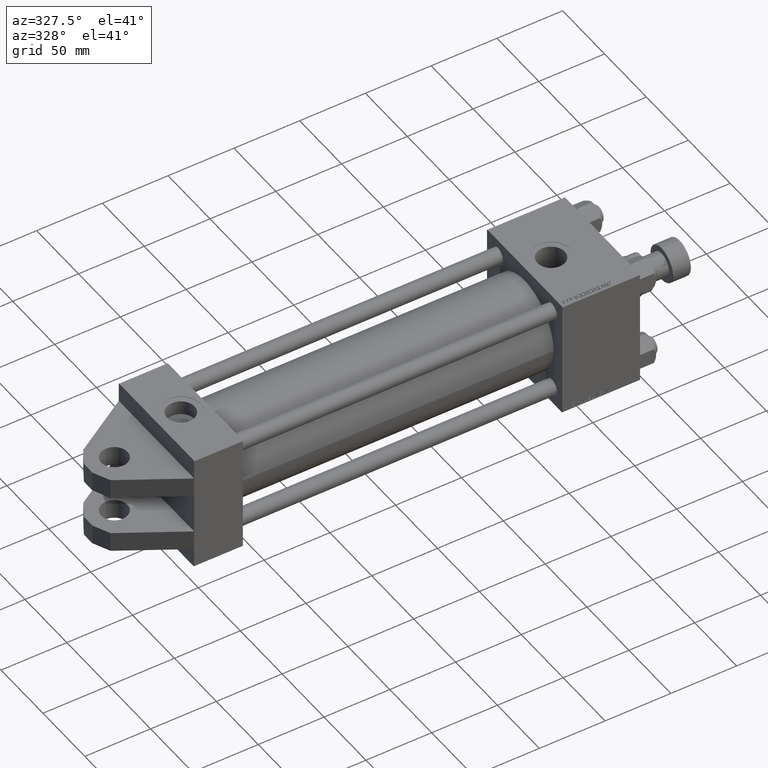
[diagram: clean part render]
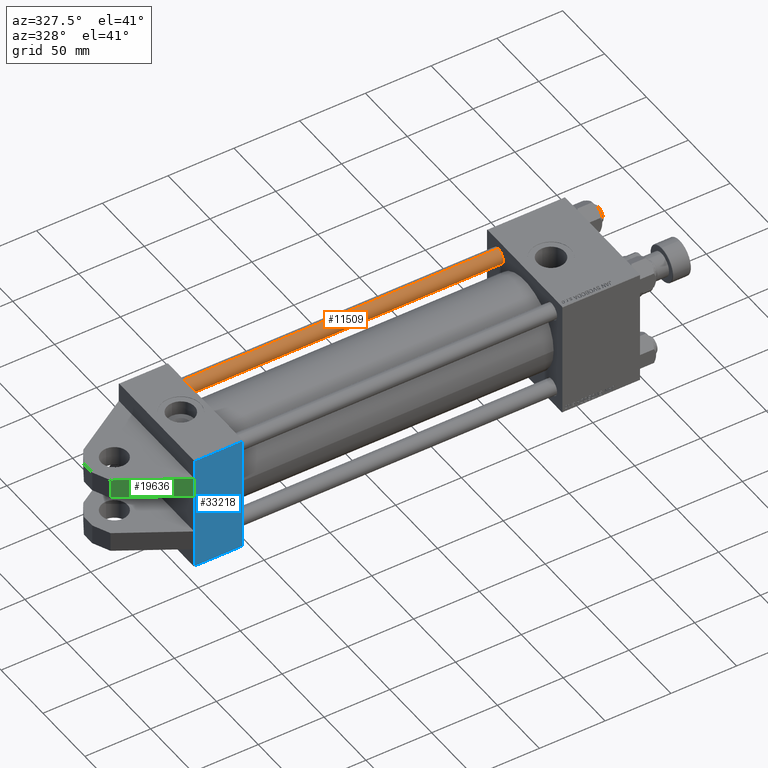
[diagram: same view with three faces highlighted in distinct colors, each labeled with its STEP entity id]
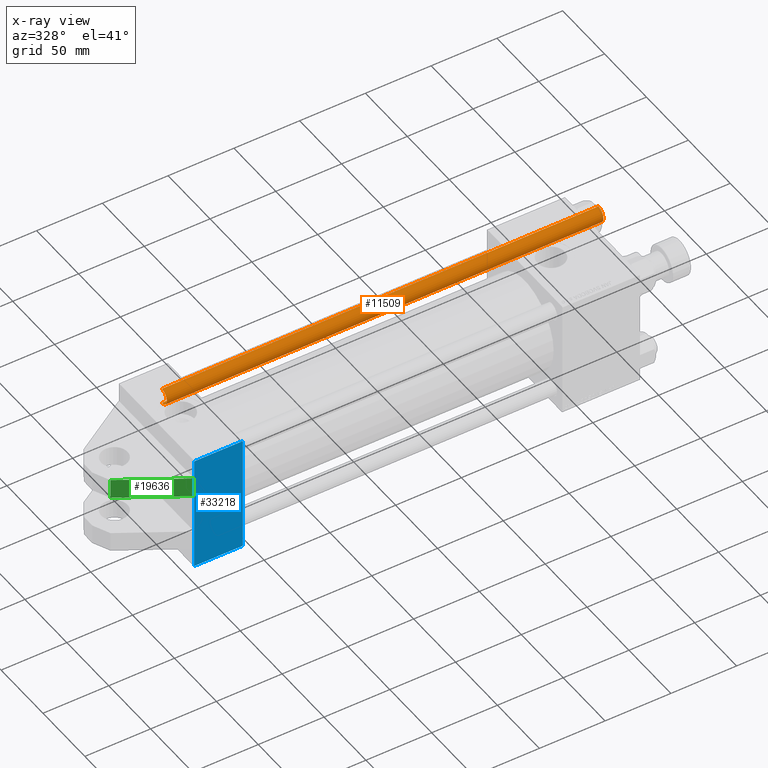
[diagram: x-ray of the same camera — body ghosted, the three highlighted faces saturated]
A machine part, auxiliary view with three faces highlighted in distinct colors.
The next image is the same camera in x-ray (body ghosted, the three faces saturated) — at least one of them is partly hidden behind the body in this view.
Their STEP definitions:

[orange] entity #11509 — the highlighted cylindrical surface (edge-blend (fillet) strip) has radius 6 mm, axis along (-1, 0, -0).
#3072 = ORIENTED_EDGE ( 'NONE', *, *, #42114, .T. ) ;
#4064 = VERTEX_POINT ( 'NONE', #45798 ) ;
#6759 = VERTEX_POINT ( 'NONE', #22047 ) ;
#6797 = DIRECTION ( 'NONE',  ( -0.000000000000000000, -0.000000000000000000, -1.000000000000000000 ) ) ;
#6805 = EDGE_LOOP ( 'NONE', ( #28702, #43788, #37924, #3072 ) ) ;
#9326 = CARTESIAN_POINT ( 'NONE',  ( 6.000000000000000888, 7.347880794884120722E-16, 332.5000000000001137 ) ) ;
#11301 = DIRECTION ( 'NONE',  ( -0.000000000000000000, -0.000000000000000000, 1.000000000000000000 ) ) ;
#11509 = ADVANCED_FACE ( 'NONE', ( #17408 ), #45187, .T. ) ;
#13043 = CARTESIAN_POINT ( 'NONE',  ( -6.000000000000000888, 0.000000000000000000, 333.0000000000000000 ) ) ;
#14238 = EDGE_CURVE ( 'NONE', #34865, #22035, #32903, .T. ) ;
#15283 = CARTESIAN_POINT ( 'NONE',  ( 0.000000000000000000, 0.000000000000000000, 0.5000000000000004441 ) ) ;
#17408 = FACE_OUTER_BOUND ( 'NONE', #6805, .T. ) ;
#20276 = VECTOR ( 'NONE', #6797, 1000.000000000000000 ) ;
#22035 = VERTEX_POINT ( 'NONE', #50832 ) ;
#22047 = CARTESIAN_POINT ( 'NONE',  ( 6.000000000000000888, 7.347880794884120722E-16, 0.5000000000000004441 ) ) ;
#27170 = DIRECTION ( 'NONE',  ( 1.000000000000000000, 0.000000000000000000, 0.000000000000000000 ) ) ;
#28702 = ORIENTED_EDGE ( 'NONE', *, *, #39894, .F. ) ;
#29310 = DIRECTION ( 'NONE',  ( -0.000000000000000000, -0.000000000000000000, -1.000000000000000000 ) ) ;
#32742 = CARTESIAN_POINT ( 'NONE',  ( 0.000000000000000000, 0.000000000000000000, 333.0000000000000000 ) ) ;
#32903 = CIRCLE ( 'NONE', #48126, 6.000000000000000888 ) ;
#33577 = LINE ( 'NONE', #37550, #20276 ) ;
#34781 = EDGE_CURVE ( 'NONE', #22035, #4064, #44511, .T. ) ;
#34865 = VERTEX_POINT ( 'NONE', #9326 ) ;
#37550 = CARTESIAN_POINT ( 'NONE',  ( 6.000000000000000888, 7.347880794884120722E-16, 333.0000000000000000 ) ) ;
#37924 = ORIENTED_EDGE ( 'NONE', *, *, #34781, .T. ) ;
#38905 = DIRECTION ( 'NONE',  ( 0.000000000000000000, 0.000000000000000000, -1.000000000000000000 ) ) ;
#39894 = EDGE_CURVE ( 'NONE', #34865, #6759, #33577, .T. ) ;
#40539 = DIRECTION ( 'NONE',  ( -0.000000000000000000, -0.000000000000000000, -1.000000000000000000 ) ) ;
#42114 = EDGE_CURVE ( 'NONE', #4064, #6759, #49046, .T. ) ;
#42358 = CARTESIAN_POINT ( 'NONE',  ( 0.000000000000000000, 0.000000000000000000, 332.5000000000001137 ) ) ;
#43788 = ORIENTED_EDGE ( 'NONE', *, *, #14238, .T. ) ;
#44511 = LINE ( 'NONE', #13043, #50590 ) ;
#44702 = AXIS2_PLACEMENT_3D ( 'NONE', #32742, #29310, #48894 ) ;
#45187 = CYLINDRICAL_SURFACE ( 'NONE', #44702, 6.000000000000000888 ) ;
#45798 = CARTESIAN_POINT ( 'NONE',  ( -6.000000000000000888, 0.000000000000000000, 0.5000000000000004441 ) ) ;
#48126 = AXIS2_PLACEMENT_3D ( 'NONE', #42358, #38905, #51070 ) ;
#48192 = AXIS2_PLACEMENT_3D ( 'NONE', #15283, #11301, #27170 ) ;
#48894 = DIRECTION ( 'NONE',  ( -1.000000000000000000, 0.000000000000000000, 0.000000000000000000 ) ) ;
#49046 = CIRCLE ( 'NONE', #48192, 6.000000000000000888 ) ;
#50590 = VECTOR ( 'NONE', #40539, 1000.000000000000000 ) ;
#50832 = CARTESIAN_POINT ( 'NONE',  ( -6.000000000000000888, 0.000000000000000000, 332.5000000000001137 ) ) ;
#51070 = DIRECTION ( 'NONE',  ( 1.000000000000000000, 0.000000000000000000, 0.000000000000000000 ) ) ;

[blue] entity #33218 — the highlighted planar face has unit normal (0, -1, -0).
#729 = AXIS2_PLACEMENT_3D ( 'NONE', #32029, #44481, #3771 ) ;
#1049 = VECTOR ( 'NONE', #2582, 1000.000000000000000 ) ;
#1268 = CARTESIAN_POINT ( 'NONE',  ( 0.000000000000000000, -30.00000000000000000, -45.00000000000000000 ) ) ;
#1771 = VECTOR ( 'NONE', #6915, 1000.000000000000000 ) ;
#1967 = ORIENTED_EDGE ( 'NONE', *, *, #42405, .F. ) ;
#2278 = LINE ( 'NONE', #2541, #33552 ) ;
#2439 = VECTOR ( 'NONE', #39937, 1000.000000000000000 ) ;
#2541 = CARTESIAN_POINT ( 'NONE',  ( 0.000000000000000000, 44.99999999999998579, -44.99999999999998579 ) ) ;
#2582 = DIRECTION ( 'NONE',  ( 1.000000000000000000, 0.000000000000000000, 0.000000000000000000 ) ) ;
#3575 = ORIENTED_EDGE ( 'NONE', *, *, #48679, .T. ) ;
#3771 = DIRECTION ( 'NONE',  ( 0.000000000000000000, 1.000000000000000000, 1.541976423090495880E-16 ) ) ;
#4960 = VERTEX_POINT ( 'NONE', #43779 ) ;
#5069 = CARTESIAN_POINT ( 'NONE',  ( 0.000000000000000000, 15.00000000000000711, -44.99999999999999289 ) ) ;
#6915 = DIRECTION ( 'NONE',  ( 0.000000000000000000, -1.000000000000000000, -1.541976423090495633E-16 ) ) ;
#7916 = VERTEX_POINT ( 'NONE', #31168 ) ;
#10399 = EDGE_LOOP ( 'NONE', ( #45661, #37907, #13143, #3575, #19356, #33637, #1967, #30226 ) ) ;
#10650 = CARTESIAN_POINT ( 'NONE',  ( 0.000000000000000000, -44.49999999999998579, -45.00000000000000000 ) ) ;
#11645 = LINE ( 'NONE', #35452, #2439 ) ;
#13143 = ORIENTED_EDGE ( 'NONE', *, *, #33579, .T. ) ;
#14132 = VERTEX_POINT ( 'NONE', #46841 ) ;
#14892 = LINE ( 'NONE', #10650, #50137 ) ;
#17914 = EDGE_CURVE ( 'NONE', #4960, #28211, #34551, .T. ) ;
#18171 = CARTESIAN_POINT ( 'NONE',  ( 0.000000000000000000, 44.99999999999998579, -44.99999999999998579 ) ) ;
#19356 = ORIENTED_EDGE ( 'NONE', *, *, #29981, .F. ) ;
#21292 = CARTESIAN_POINT ( 'NONE',  ( 37.00000000000000000, 44.49999999999998579, -44.99999999999998579 ) ) ;
#21876 = CARTESIAN_POINT ( 'NONE',  ( 37.00000000000000000, 44.49999999999998579, -44.99999999999998579 ) ) ;
#22078 = VECTOR ( 'NONE', #42252, 1000.000000000000000 ) ;
#22298 = DIRECTION ( 'NONE',  ( -1.000000000000000000, 0.000000000000000000, 0.000000000000000000 ) ) ;
#22378 = LINE ( 'NONE', #1268, #45038 ) ;
#23330 = FACE_OUTER_BOUND ( 'NONE', #10399, .T. ) ;
#24786 = CARTESIAN_POINT ( 'NONE',  ( 0.000000000000000000, -44.49999999999995737, -45.00000000000000000 ) ) ;
#25329 = EDGE_CURVE ( 'NONE', #7916, #14132, #22378, .T. ) ;
#25334 = CARTESIAN_POINT ( 'NONE',  ( 0.000000000000000000, 30.00000000000000000, -45.00000000000000000 ) ) ;
#25848 = LINE ( 'NONE', #25334, #22078 ) ;
#26098 = VERTEX_POINT ( 'NONE', #31484 ) ;
#26891 = LINE ( 'NONE', #18171, #41108 ) ;
#27842 = CARTESIAN_POINT ( 'NONE',  ( 0.000000000000000000, 44.99999999999998579, -44.99999999999998579 ) ) ;
#28211 = VERTEX_POINT ( 'NONE', #21292 ) ;
#28897 = EDGE_CURVE ( 'NONE', #4960, #48374, #26891, .T. ) ;
#29981 = EDGE_CURVE ( 'NONE', #7916, #39324, #2278, .T. ) ;
#30226 = ORIENTED_EDGE ( 'NONE', *, *, #44017, .F. ) ;
#31168 = CARTESIAN_POINT ( 'NONE',  ( 0.000000000000000000, -30.00000000000000000, -45.00000000000000000 ) ) ;
#31484 = CARTESIAN_POINT ( 'NONE',  ( 37.00000000000000000, -44.49999999999995737, -45.00000000000000000 ) ) ;
#32029 = CARTESIAN_POINT ( 'NONE',  ( 37.00000000000000000, 44.99999999999998579, -44.99999999999998579 ) ) ;
#33218 = ADVANCED_FACE ( 'NONE', ( #23330 ), #51879, .T. ) ;
#33498 = DIRECTION ( 'NONE',  ( -0.000000000000000000, 1.000000000000000000, -0.000000000000000000 ) ) ;
#33552 = VECTOR ( 'NONE', #50646, 1000.000000000000000 ) ;
#33579 = EDGE_CURVE ( 'NONE', #28211, #26098, #11645, .T. ) ;
#33637 = ORIENTED_EDGE ( 'NONE', *, *, #25329, .T. ) ;
#34551 = LINE ( 'NONE', #21876, #1049 ) ;
#35452 = CARTESIAN_POINT ( 'NONE',  ( 37.00000000000000000, 44.99999999999998579, -44.99999999999998579 ) ) ;
#35785 = LINE ( 'NONE', #27842, #1771 ) ;
#37907 = ORIENTED_EDGE ( 'NONE', *, *, #17914, .T. ) ;
#39056 = DIRECTION ( 'NONE',  ( 0.000000000000000000, -1.000000000000000000, -1.541976423090495633E-16 ) ) ;
#39324 = VERTEX_POINT ( 'NONE', #24786 ) ;
#39937 = DIRECTION ( 'NONE',  ( 0.000000000000000000, -1.000000000000000000, -1.541976423090495633E-16 ) ) ;
#41108 = VECTOR ( 'NONE', #39056, 1000.000000000000000 ) ;
#42252 = DIRECTION ( 'NONE',  ( -0.000000000000000000, -1.000000000000000000, -0.000000000000000000 ) ) ;
#42405 = EDGE_CURVE ( 'NONE', #44518, #14132, #35785, .T. ) ;
#43779 = CARTESIAN_POINT ( 'NONE',  ( 0.000000000000000000, 44.49999999999998579, -44.99999999999998579 ) ) ;
#44017 = EDGE_CURVE ( 'NONE', #48374, #44518, #25848, .T. ) ;
#44481 = DIRECTION ( 'NONE',  ( 0.000000000000000000, 1.541976423090495880E-16, -1.000000000000000000 ) ) ;
#44518 = VERTEX_POINT ( 'NONE', #5069 ) ;
#45038 = VECTOR ( 'NONE', #33498, 1000.000000000000000 ) ;
#45184 = CARTESIAN_POINT ( 'NONE',  ( 0.000000000000000000, 30.00000000000000000, -45.00000000000000000 ) ) ;
#45661 = ORIENTED_EDGE ( 'NONE', *, *, #28897, .F. ) ;
#46841 = CARTESIAN_POINT ( 'NONE',  ( 0.000000000000000000, -15.00000000000000000, -45.00000000000000000 ) ) ;
#48374 = VERTEX_POINT ( 'NONE', #45184 ) ;
#48679 = EDGE_CURVE ( 'NONE', #26098, #39324, #14892, .T. ) ;
#50137 = VECTOR ( 'NONE', #22298, 1000.000000000000000 ) ;
#50646 = DIRECTION ( 'NONE',  ( 0.000000000000000000, -1.000000000000000000, -1.541976423090495633E-16 ) ) ;
#51879 = PLANE ( 'NONE',  #729 ) ;

[green] entity #19636 — the highlighted planar face has unit normal (-0.5111, -0.8595, -0).
#646 = DIRECTION ( 'NONE',  ( -0.8595155407125480984, 0.000000000000000000, 0.5111096117992853793 ) ) ;
#1268 = CARTESIAN_POINT ( 'NONE',  ( 0.000000000000000000, -30.00000000000000000, -45.00000000000000000 ) ) ;
#1950 = CARTESIAN_POINT ( 'NONE',  ( -46.14251089227400371, -30.00000000000000000, -17.56142592832800631 ) ) ;
#4619 = LINE ( 'NONE', #13070, #43336 ) ;
#5810 = CARTESIAN_POINT ( 'NONE',  ( -46.14251089227400371, -30.00000000000000000, -17.56142592832800631 ) ) ;
#7916 = VERTEX_POINT ( 'NONE', #31168 ) ;
#8043 = ORIENTED_EDGE ( 'NONE', *, *, #44325, .T. ) ;
#10285 = DIRECTION ( 'NONE',  ( -0.000000000000000000, 1.000000000000000000, -0.000000000000000000 ) ) ;
#10344 = AXIS2_PLACEMENT_3D ( 'NONE', #43451, #15673, #28095 ) ;
#12623 = EDGE_CURVE ( 'NONE', #30460, #22528, #14259, .T. ) ;
#13070 = CARTESIAN_POINT ( 'NONE',  ( -46.14251089227400371, -15.00000000000000000, -17.56142592832800631 ) ) ;
#14132 = VERTEX_POINT ( 'NONE', #46841 ) ;
#14259 = LINE ( 'NONE', #5810, #26134 ) ;
#15419 = FACE_OUTER_BOUND ( 'NONE', #20969, .T. ) ;
#15673 = DIRECTION ( 'NONE',  ( -0.5111096117992853793, 0.000000000000000000, -0.8595155407125480984 ) ) ;
#19636 = ADVANCED_FACE ( 'NONE', ( #15419 ), #36292, .T. ) ;
#20969 = EDGE_LOOP ( 'NONE', ( #27451, #24254, #8043, #39037 ) ) ;
#22378 = LINE ( 'NONE', #1268, #45038 ) ;
#22528 = VERTEX_POINT ( 'NONE', #31546 ) ;
#22540 = DIRECTION ( 'NONE',  ( -0.8595155407125480984, 0.000000000000000000, 0.5111096117992853793 ) ) ;
#24254 = ORIENTED_EDGE ( 'NONE', *, *, #25329, .F. ) ;
#24378 = CARTESIAN_POINT ( 'NONE',  ( -46.14251089227400371, -30.00000000000000000, -17.56142592832800631 ) ) ;
#24603 = EDGE_CURVE ( 'NONE', #14132, #22528, #4619, .T. ) ;
#25329 = EDGE_CURVE ( 'NONE', #7916, #14132, #22378, .T. ) ;
#26134 = VECTOR ( 'NONE', #10285, 1000.000000000000000 ) ;
#26252 = LINE ( 'NONE', #1950, #38994 ) ;
#27451 = ORIENTED_EDGE ( 'NONE', *, *, #24603, .F. ) ;
#28095 = DIRECTION ( 'NONE',  ( -0.8595155407125480984, 0.000000000000000000, 0.5111096117992853793 ) ) ;
#30460 = VERTEX_POINT ( 'NONE', #24378 ) ;
#31168 = CARTESIAN_POINT ( 'NONE',  ( 0.000000000000000000, -30.00000000000000000, -45.00000000000000000 ) ) ;
#31546 = CARTESIAN_POINT ( 'NONE',  ( -46.14251089227400371, -15.00000000000000000, -17.56142592832800631 ) ) ;
#33498 = DIRECTION ( 'NONE',  ( -0.000000000000000000, 1.000000000000000000, -0.000000000000000000 ) ) ;
#36292 = PLANE ( 'NONE',  #10344 ) ;
#38994 = VECTOR ( 'NONE', #22540, 999.9999999999998863 ) ;
#39037 = ORIENTED_EDGE ( 'NONE', *, *, #12623, .T. ) ;
#43336 = VECTOR ( 'NONE', #646, 999.9999999999998863 ) ;
#43451 = CARTESIAN_POINT ( 'NONE',  ( -46.14251089227400371, -30.00000000000000000, -17.56142592832800631 ) ) ;
#44325 = EDGE_CURVE ( 'NONE', #7916, #30460, #26252, .T. ) ;
#45038 = VECTOR ( 'NONE', #33498, 1000.000000000000000 ) ;
#46841 = CARTESIAN_POINT ( 'NONE',  ( 0.000000000000000000, -15.00000000000000000, -45.00000000000000000 ) ) ;